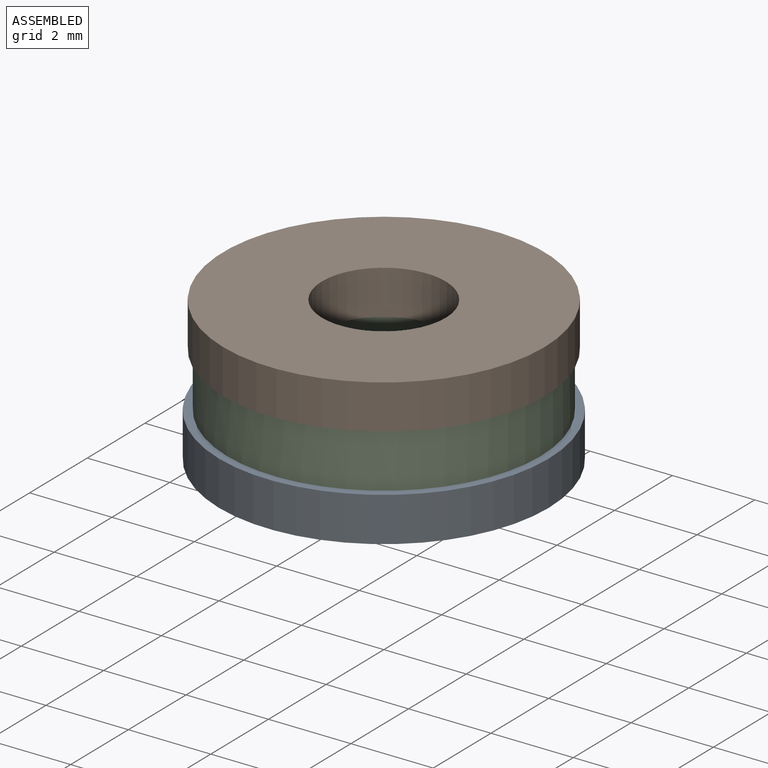
[diagram: assembled view]
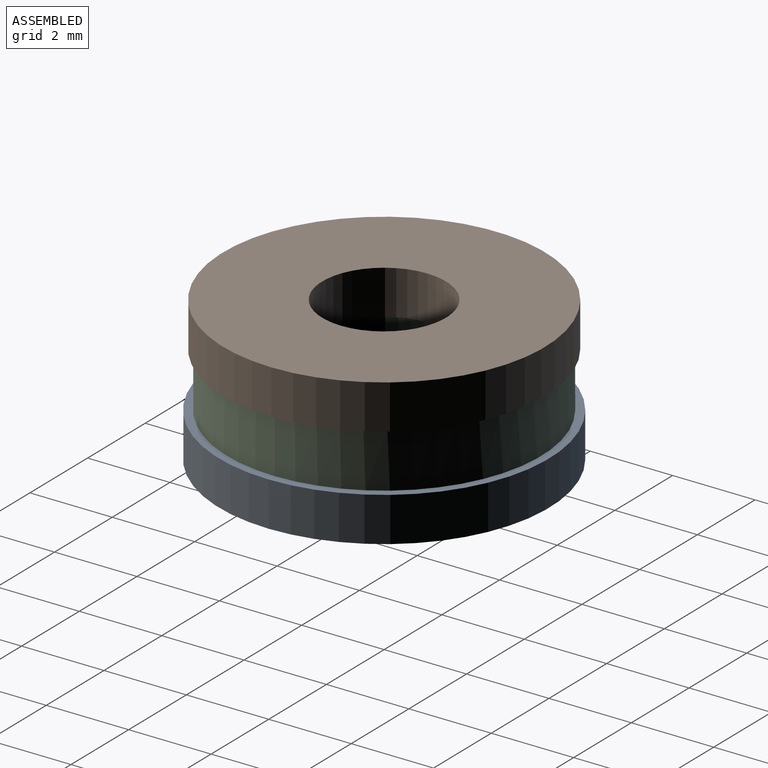
[diagram: assembled view, second angle]
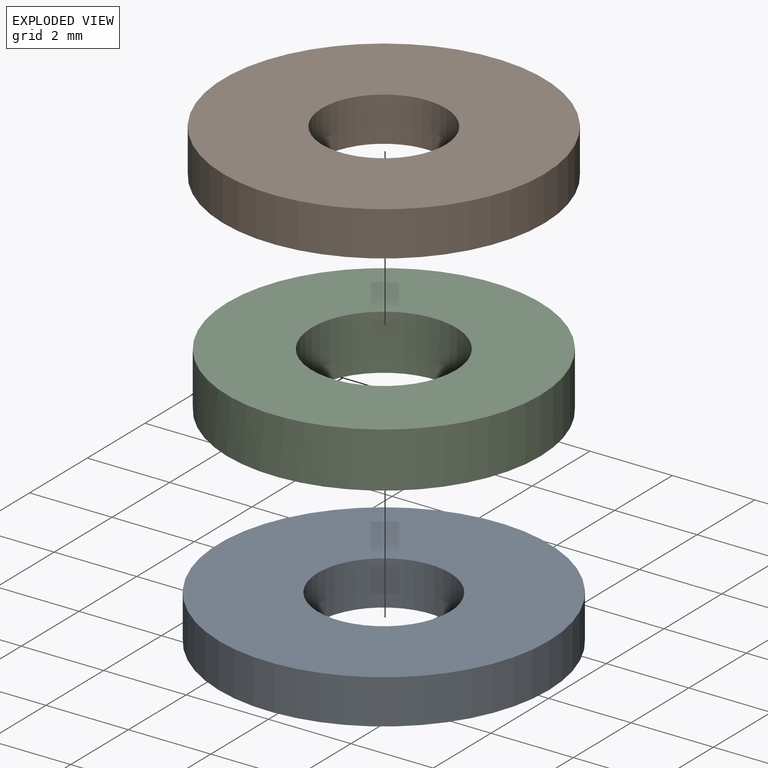
[diagram: exploded view]
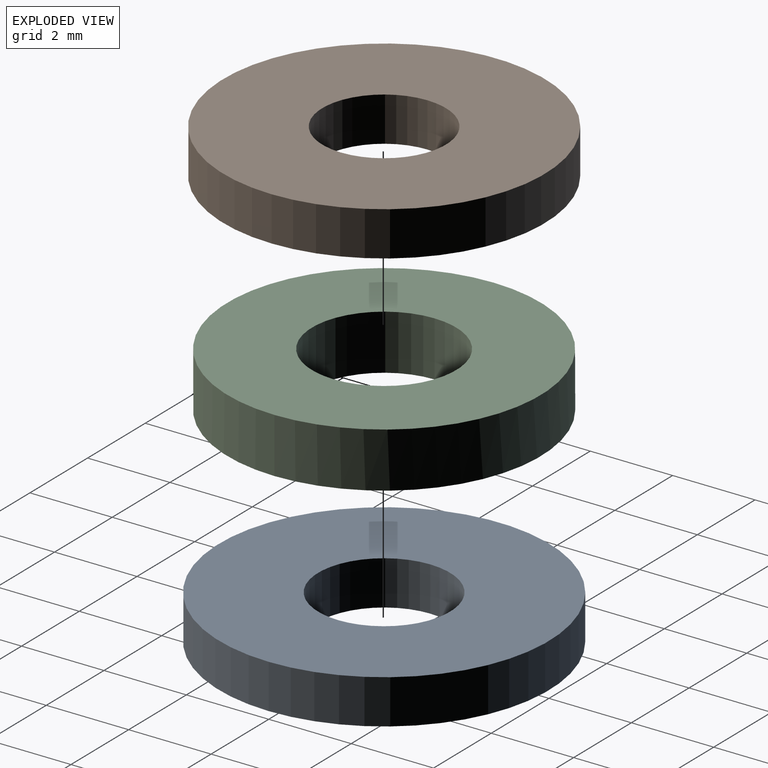
[diagram: exploded view, second angle]
ASSEMBLY  parts=3 mates=2
PART A: 4 faces, bbox 8x8x1.1 mm
  f0: cylinder r=1.6mm len=3.2mm, axis (0,0,-1), area 10.9mm2, adj f2,f3
  f1: cylinder r=4mm len=8mm, axis (0,0,-1), area 27.1mm2, adj f2,f3
  f2: plane 8x8mm, normal (0,0,1), area 42.2mm2, adj f0,f1
  f3: plane 8x8mm, normal (0,0,-1), area 42.2mm2, adj f0,f1
PART B: 4 faces, bbox 7.8x7.8x1.1 mm
  f0: cylinder r=1.5mm len=3mm, axis (0,0,-1), area 10.2mm2, adj f2,f3
  f1: cylinder r=3.9mm len=7.8mm, axis (0,0,-1), area 26.5mm2, adj f2,f3
  f2: plane 7.8x7.8mm, normal (0,0,1), area 40.7mm2, adj f0,f1
  f3: plane 7.8x7.8mm, normal (0,0,-1), area 40.7mm2, adj f0,f1
PART C: 4 faces, bbox 7.6x7.6x1.3 mm
  f0: plane 7.6x7.6mm, normal (0,0,-1), area 35.7mm2, adj f2,f3
  f1: plane 7.6x7.6mm, normal (0,0,1), area 35.7mm2, adj f2,f3
  f2: cylinder r=3.8mm len=7.6mm, axis (0,0,1), area 32mm2, adj f0,f1
  f3: cylinder r=1.75mm len=3.5mm, axis (0,0,1), area 14.7mm2, adj f0,f1
PLACE A at identity fixed
PLACE B at identity
PLACE C at identity
MATE revolute C.f2 <-> B.f0  axis (0,0,1) through (0,0,2.42)mm
MATE revolute A.f0 <-> C.f3  axis (0,0,1) through (0,0,1.08)mm
